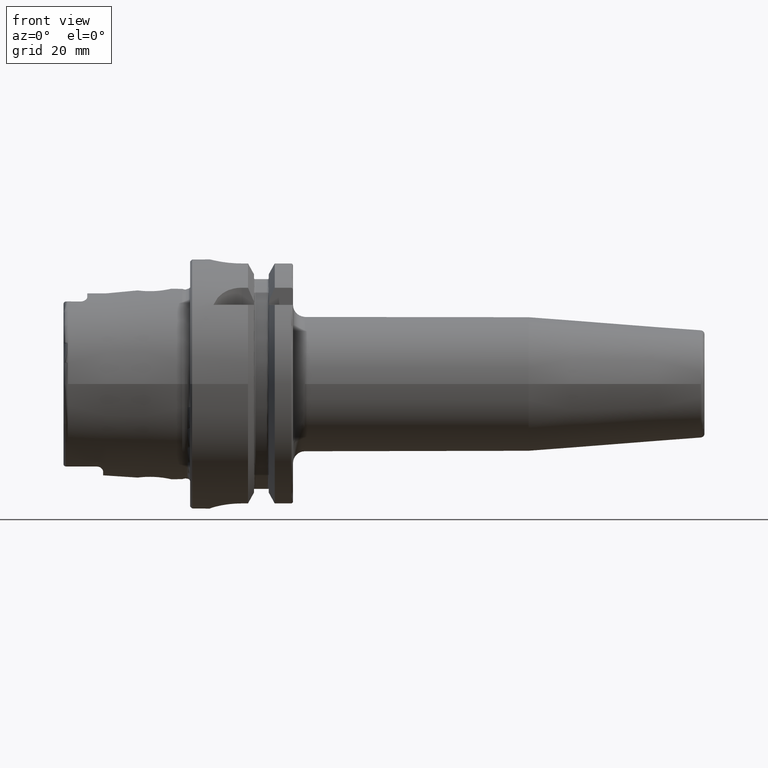
[diagram: clean part render]
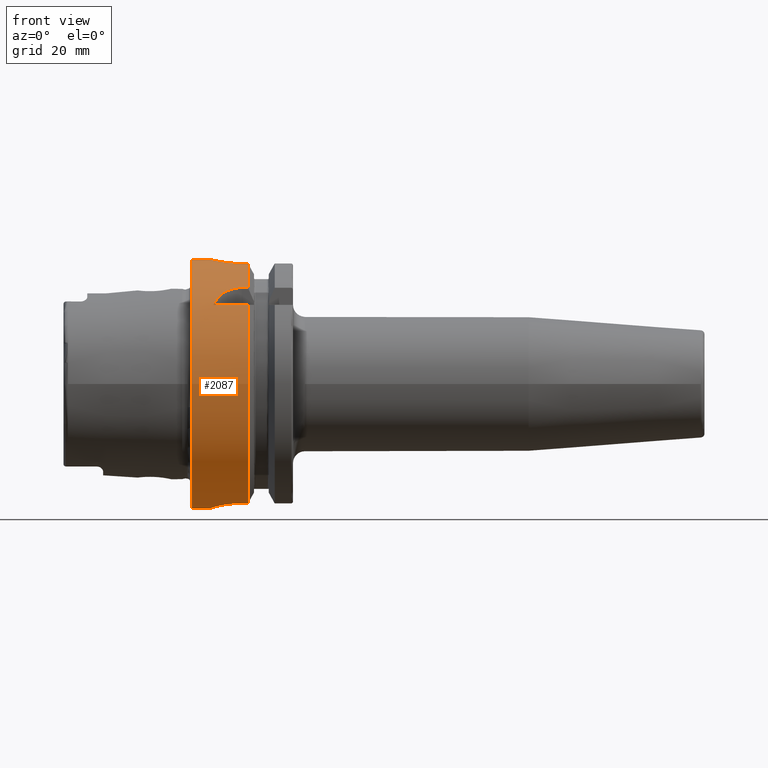
[diagram: same view with one face highlighted and labeled with its STEP entity id]
A machine part, front view. The second image highlights one B-rep face of the part: STEP entity #2087.
In plain terms, the highlighted cylindrical surface (bore or boss wall) has radius 31.5 mm, axis along (1, 0, 0).
Its self-contained STEP definition (entity closure, byte-faithful):
#57=B_SPLINE_CURVE_WITH_KNOTS('',3,(#3852,#3853,#3854,#3855,#3856,#3857,
#3858,#3859,#3860,#3861,#3862,#3863,#3864,#3865,#3866,#3867,#3868,#3869,
#3870,#3871,#3872,#3873,#3874,#3875,#3876,#3877),.UNSPECIFIED.,.F.,.F.,
(4,2,2,2,2,2,2,2,2,2,2,2,4),(0.,0.188688694287612,0.377377388575223,0.56606194688798,
0.754746505200737,0.943431063513494,1.13211562182625,1.32080431611386,1.50949301040147,
1.69818170468909,1.8868703989767,2.07555495728945,2.26423951560221),
 .UNSPECIFIED.);
#58=B_SPLINE_CURVE_WITH_KNOTS('',3,(#3878,#3879,#3880,#3881,#3882,#3883,
#3884,#3885,#3886,#3887),.UNSPECIFIED.,.F.,.F.,(4,2,2,2,4),(2.26423951560221,
2.45292407391497,2.64160863222773,2.83029732651534,3.01898602080295),
 .UNSPECIFIED.);
#61=B_SPLINE_CURVE_WITH_KNOTS('',3,(#3944,#3945,#3946,#3947,#3948,#3949,
#3950,#3951,#3952,#3953,#3954,#3955),.UNSPECIFIED.,.F.,.F.,(4,2,2,2,2,4),
(1.1085154204615,1.31979218709236,1.52798350480179,1.73617482251122,1.90421770126337,
2.07226058001552),.UNSPECIFIED.);
#71=B_SPLINE_CURVE_WITH_KNOTS('',3,(#4124,#4125,#4126,#4127,#4128,#4129,
#4130,#4131,#4132,#4133),.UNSPECIFIED.,.F.,.F.,(4,2,2,2,4),(1.20927420824097,
1.5131742975437,1.81707438684643,2.12000449915965,2.42293461147287),
 .UNSPECIFIED.);
#74=B_SPLINE_CURVE_WITH_KNOTS('',3,(#4159,#4160,#4161,#4162,#4163,#4164,
#4165,#4166,#4167,#4168),.UNSPECIFIED.,.F.,.F.,(4,2,2,2,4),(0.,0.30293011231322,
0.605860224626439,0.90976031392917,1.2136604032319),.UNSPECIFIED.);
#84=B_SPLINE_CURVE_WITH_KNOTS('',3,(#4314,#4315,#4316,#4317,#4318,#4319,
#4320,#4321,#4322,#4323,#4324,#4325,#4326,#4327,#4328,#4329,#4330,#4331),
 .UNSPECIFIED.,.F.,.F.,(4,2,2,2,2,2,2,2,4),(0.,0.302805879979318,0.605611759958635,
0.908372461246501,1.21113316253437,1.51389386382223,1.8166545651101,2.11946044508942,
2.42226632506874),.UNSPECIFIED.);
#97=FACE_BOUND('',#424,.T.);
#202=CYLINDRICAL_SURFACE('',#2321,31.5);
#294=FACE_OUTER_BOUND('',#423,.T.);
#423=EDGE_LOOP('',(#1786,#1787,#1788,#1789,#1790,#1791,#1792,#1793,#1794,
#1795,#1796,#1797,#1798,#1799,#1800,#1801,#1802,#1803));
#424=EDGE_LOOP('',(#1804,#1805));
#522=LINE('',#3919,#632);
#527=LINE('',#3964,#637);
#545=LINE('',#4141,#655);
#546=LINE('',#4145,#656);
#558=LINE('',#4308,#668);
#561=LINE('',#4338,#671);
#563=LINE('',#4344,#673);
#632=VECTOR('',#2674,10.);
#637=VECTOR('',#2685,10.);
#655=VECTOR('',#2749,10.);
#656=VECTOR('',#2752,10.);
#668=VECTOR('',#2830,10.);
#671=VECTOR('',#2841,10.);
#673=VECTOR('',#2849,31.5);
#747=CIRCLE('',#2264,31.5);
#748=CIRCLE('',#2265,31.5);
#756=CIRCLE('',#2285,31.5);
#757=CIRCLE('',#2287,31.5);
#771=CIRCLE('',#2322,31.5);
#772=CIRCLE('',#2323,31.5);
#923=VERTEX_POINT('',#3849);
#924=VERTEX_POINT('',#3851);
#932=VERTEX_POINT('',#3916);
#933=VERTEX_POINT('',#3918);
#937=VERTEX_POINT('',#3943);
#939=VERTEX_POINT('',#3960);
#944=VERTEX_POINT('',#3976);
#945=VERTEX_POINT('',#3978);
#970=VERTEX_POINT('',#4122);
#971=VERTEX_POINT('',#4123);
#972=VERTEX_POINT('',#4143);
#973=VERTEX_POINT('',#4144);
#976=VERTEX_POINT('',#4158);
#977=VERTEX_POINT('',#4173);
#993=VERTEX_POINT('',#4305);
#994=VERTEX_POINT('',#4307);
#995=VERTEX_POINT('',#4313);
#997=VERTEX_POINT('',#4343);
#1167=EDGE_CURVE('',#924,#923,#57,.T.);
#1168=EDGE_CURVE('',#923,#924,#58,.T.);
#1177=EDGE_CURVE('',#933,#932,#522,.T.);
#1183=EDGE_CURVE('',#932,#937,#61,.T.);
#1187=EDGE_CURVE('',#937,#939,#527,.T.);
#1193=EDGE_CURVE('',#933,#944,#747,.T.);
#1194=EDGE_CURVE('',#944,#945,#748,.T.);
#1228=EDGE_CURVE('',#970,#971,#71,.T.);
#1232=EDGE_CURVE('',#971,#945,#545,.T.);
#1233=EDGE_CURVE('',#972,#973,#546,.T.);
#1238=EDGE_CURVE('',#973,#976,#74,.T.);
#1240=EDGE_CURVE('',#976,#970,#756,.T.);
#1241=EDGE_CURVE('',#972,#977,#757,.T.);
#1273=EDGE_CURVE('',#994,#993,#558,.T.);
#1275=EDGE_CURVE('',#993,#995,#84,.T.);
#1279=EDGE_CURVE('',#995,#977,#561,.T.);
#1281=EDGE_CURVE('',#994,#939,#771,.T.);
#1282=EDGE_CURVE('',#944,#997,#563,.T.);
#1283=EDGE_CURVE('',#997,#997,#772,.T.);
#1786=ORIENTED_EDGE('',*,*,#1187,.T.);
#1787=ORIENTED_EDGE('',*,*,#1281,.F.);
#1788=ORIENTED_EDGE('',*,*,#1273,.T.);
#1789=ORIENTED_EDGE('',*,*,#1275,.T.);
#1790=ORIENTED_EDGE('',*,*,#1279,.T.);
#1791=ORIENTED_EDGE('',*,*,#1241,.F.);
#1792=ORIENTED_EDGE('',*,*,#1233,.T.);
#1793=ORIENTED_EDGE('',*,*,#1238,.T.);
#1794=ORIENTED_EDGE('',*,*,#1240,.T.);
#1795=ORIENTED_EDGE('',*,*,#1228,.T.);
#1796=ORIENTED_EDGE('',*,*,#1232,.T.);
#1797=ORIENTED_EDGE('',*,*,#1194,.F.);
#1798=ORIENTED_EDGE('',*,*,#1282,.T.);
#1799=ORIENTED_EDGE('',*,*,#1283,.T.);
#1800=ORIENTED_EDGE('',*,*,#1282,.F.);
#1801=ORIENTED_EDGE('',*,*,#1193,.F.);
#1802=ORIENTED_EDGE('',*,*,#1177,.T.);
#1803=ORIENTED_EDGE('',*,*,#1183,.T.);
#1804=ORIENTED_EDGE('',*,*,#1167,.T.);
#1805=ORIENTED_EDGE('',*,*,#1168,.T.);
#2087=ADVANCED_FACE('',(#294,#97),#202,.T.);
#2264=AXIS2_PLACEMENT_3D('',#3977,#2698,#2699);
#2265=AXIS2_PLACEMENT_3D('',#3979,#2700,#2701);
#2285=AXIS2_PLACEMENT_3D('',#4171,#2760,#2761);
#2287=AXIS2_PLACEMENT_3D('',#4174,#2764,#2765);
#2321=AXIS2_PLACEMENT_3D('',#4341,#2845,#2846);
#2322=AXIS2_PLACEMENT_3D('',#4342,#2847,#2848);
#2323=AXIS2_PLACEMENT_3D('',#4345,#2850,#2851);
#2674=DIRECTION('',(-1.,0.,0.));
#2685=DIRECTION('',(1.,0.,0.));
#2698=DIRECTION('center_axis',(1.,0.,0.));
#2699=DIRECTION('ref_axis',(0.,0.,-1.));
#2700=DIRECTION('center_axis',(1.,0.,0.));
#2701=DIRECTION('ref_axis',(0.,0.,-1.));
#2749=DIRECTION('',(1.,0.,0.));
#2752=DIRECTION('',(-1.,0.,0.));
#2760=DIRECTION('center_axis',(-1.,0.,0.));
#2761=DIRECTION('ref_axis',(0.,1.,0.));
#2764=DIRECTION('center_axis',(1.,0.,0.));
#2765=DIRECTION('ref_axis',(0.,0.,-1.));
#2830=DIRECTION('',(-1.,0.,0.));
#2841=DIRECTION('',(1.,0.,0.));
#2845=DIRECTION('center_axis',(1.,0.,0.));
#2846=DIRECTION('ref_axis',(0.,1.,0.));
#2847=DIRECTION('center_axis',(1.,0.,0.));
#2848=DIRECTION('ref_axis',(0.,0.,-1.));
#2849=DIRECTION('',(-1.,0.,0.));
#2850=DIRECTION('center_axis',(1.,0.,0.));
#2851=DIRECTION('ref_axis',(0.,0.,-1.));
#3849=CARTESIAN_POINT('',(12.,31.5,-6.12323399573677E-16));
#3851=CARTESIAN_POINT('',(7.,31.100643080168,5.));
#3852=CARTESIAN_POINT('Ctrl Pts',(7.,31.100643080168,5.));
#3853=CARTESIAN_POINT('Ctrl Pts',(6.37103768570796,31.100643080168,5.));
#3854=CARTESIAN_POINT('Ctrl Pts',(5.70089281579202,31.1216953112949,4.87408354368814));
#3855=CARTESIAN_POINT('Ctrl Pts',(4.46931934300962,31.1973810209855,4.36348784122736));
#3856=CARTESIAN_POINT('Ctrl Pts',(3.90779781350673,31.2508828501623,3.97886562537221));
#3857=CARTESIAN_POINT('Ctrl Pts',(3.021144092268,31.3510329557602,3.09221190413348));
#3858=CARTESIAN_POINT('Ctrl Pts',(2.63651425348544,31.4042391414288,2.5306861925578));
#3859=CARTESIAN_POINT('Ctrl Pts',(2.12591301120586,31.4792463697936,1.29909839144709));
#3860=CARTESIAN_POINT('Ctrl Pts',(2.,31.5,0.62894852770919));
#3861=CARTESIAN_POINT('Ctrl Pts',(2.,31.5,-0.62894852770919));
#3862=CARTESIAN_POINT('Ctrl Pts',(2.12591301120586,31.4792463697936,-1.29909839144709));
#3863=CARTESIAN_POINT('Ctrl Pts',(2.63651425348544,31.4042391414288,-2.5306861925578));
#3864=CARTESIAN_POINT('Ctrl Pts',(3.021144092268,31.3510329557602,-3.09221190413348));
#3865=CARTESIAN_POINT('Ctrl Pts',(3.90779781350673,31.2508828501623,-3.97886562537221));
#3866=CARTESIAN_POINT('Ctrl Pts',(4.46931934300962,31.1973810209855,-4.36348784122736));
#3867=CARTESIAN_POINT('Ctrl Pts',(5.70089281579202,31.1216953112949,-4.87408354368814));
#3868=CARTESIAN_POINT('Ctrl Pts',(6.37103768570796,31.100643080168,-5.));
#3869=CARTESIAN_POINT('Ctrl Pts',(7.62896231429204,31.100643080168,-5.));
#3870=CARTESIAN_POINT('Ctrl Pts',(8.29910718420798,31.1216953112949,-4.87408354368814));
#3871=CARTESIAN_POINT('Ctrl Pts',(9.53068065699038,31.1973810209855,-4.36348784122736));
#3872=CARTESIAN_POINT('Ctrl Pts',(10.0922021864933,31.2508828501623,-3.97886562537221));
#3873=CARTESIAN_POINT('Ctrl Pts',(10.978855907732,31.3510329557602,-3.09221190413348));
#3874=CARTESIAN_POINT('Ctrl Pts',(11.3634857465146,31.4042391414288,-2.53068619255779));
#3875=CARTESIAN_POINT('Ctrl Pts',(11.8740869887941,31.4792463697936,-1.29909839144708));
#3876=CARTESIAN_POINT('Ctrl Pts',(12.,31.5,-0.62894852770919));
#3877=CARTESIAN_POINT('Ctrl Pts',(12.,31.5,-4.16333634234434E-16));
#3878=CARTESIAN_POINT('Ctrl Pts',(12.,31.5,-1.11022302462516E-15));
#3879=CARTESIAN_POINT('Ctrl Pts',(12.,31.5,0.628948527709188));
#3880=CARTESIAN_POINT('Ctrl Pts',(11.8740869887941,31.4792463697936,1.29909839144708));
#3881=CARTESIAN_POINT('Ctrl Pts',(11.3634857465146,31.4042391414288,2.53068619255779));
#3882=CARTESIAN_POINT('Ctrl Pts',(10.978855907732,31.3510329557602,3.09221190413348));
#3883=CARTESIAN_POINT('Ctrl Pts',(10.0922021864933,31.2508828501623,3.97886562537221));
#3884=CARTESIAN_POINT('Ctrl Pts',(9.53068065699038,31.1973810209855,4.36348784122736));
#3885=CARTESIAN_POINT('Ctrl Pts',(8.29910718420798,31.1216953112949,4.87408354368814));
#3886=CARTESIAN_POINT('Ctrl Pts',(7.62896231429204,31.100643080168,5.));
#3887=CARTESIAN_POINT('Ctrl Pts',(7.,31.100643080168,5.));
#3916=CARTESIAN_POINT('',(5.88828609634419,-24.3361870472759,20.));
#3918=CARTESIAN_POINT('',(14.6225009252407,-24.3361870472759,20.));
#3919=CARTESIAN_POINT('',(7.56125046262034,-24.3361870472759,20.));
#3943=CARTESIAN_POINT('',(13.,-20.,24.3361870472759));
#3944=CARTESIAN_POINT('Ctrl Pts',(5.88828609634419,-24.3361870472759,20.));
#3945=CARTESIAN_POINT('Ctrl Pts',(6.11069532820048,-23.9044753723342,20.5253108035937));
#3946=CARTESIAN_POINT('Ctrl Pts',(6.38325999044306,-23.4713523250807,21.0173865932788));
#3947=CARTESIAN_POINT('Ctrl Pts',(7.044898076458,-22.6317364276543,21.9186738868096));
#3948=CARTESIAN_POINT('Ctrl Pts',(7.46714468561685,-22.1861072682036,22.3682920878559));
#3949=CARTESIAN_POINT('Ctrl Pts',(8.46725531403812,-21.3767026700071,23.143042657319));
#3950=CARTESIAN_POINT('Ctrl Pts',(9.04646427720221,-21.0147449478223,23.4683362269255));
#3951=CARTESIAN_POINT('Ctrl Pts',(10.1145001432702,-20.5200081116516,23.9011603796022));
#3952=CARTESIAN_POINT('Ctrl Pts',(10.670823971716,-20.3234249831704,24.0673462447194));
#3953=CARTESIAN_POINT('Ctrl Pts',(11.8334528721306,-20.063121855676,24.2847667849476));
#3954=CARTESIAN_POINT('Ctrl Pts',(12.4398570708262,-20.,24.3361870472759));
#3955=CARTESIAN_POINT('Ctrl Pts',(13.,-20.,24.3361870472759));
#3960=CARTESIAN_POINT('',(14.6225009252407,-20.,24.3361870472759));
#3964=CARTESIAN_POINT('',(7.56125046262035,-20.,24.3361870472759));
#3976=CARTESIAN_POINT('',(14.6225009252407,-31.5,-3.85763741731416E-15));
#3977=CARTESIAN_POINT('Origin',(14.6225009252407,0.,0.));
#3978=CARTESIAN_POINT('',(14.6225009252407,-9.,-30.1869176962472));
#3979=CARTESIAN_POINT('Origin',(14.6225009252407,0.,0.));
#4122=CARTESIAN_POINT('',(5.,-0.999999999999999,-31.4841229828623));
#4123=CARTESIAN_POINT('',(13.,-9.,-30.1869176962472));
#4124=CARTESIAN_POINT('Ctrl Pts',(5.,-0.999999999999997,-31.4841229828623));
#4125=CARTESIAN_POINT('Ctrl Pts',(5.,-2.01248971281587,-31.4519642432536));
#4126=CARTESIAN_POINT('Ctrl Pts',(5.2037733306458,-3.08756640398171,-31.3640631381934));
#4127=CARTESIAN_POINT('Ctrl Pts',(6.02370102555041,-5.05836608044729,-31.1070804719497));
#4128=CARTESIAN_POINT('Ctrl Pts',(6.63955745341061,-5.95454409907418,-30.9405445582004));
#4129=CARTESIAN_POINT('Ctrl Pts',(8.05472493283182,-7.36715009628369,-30.6348764237341));
#4130=CARTESIAN_POINT('Ctrl Pts',(8.9496642215883,-7.98063403850821,-30.4752177477269));
#4131=CARTESIAN_POINT('Ctrl Pts',(10.9171740660538,-8.79719825889174,-30.2496070227108));
#4132=CARTESIAN_POINT('Ctrl Pts',(11.9902329589559,-9.,-30.1869176962472));
#4133=CARTESIAN_POINT('Ctrl Pts',(13.,-9.,-30.1869176962472));
#4141=CARTESIAN_POINT('',(7.56125046262035,-8.99999999999999,-30.1869176962472));
#4143=CARTESIAN_POINT('',(14.6225009252407,9.,-30.1869176962472));
#4144=CARTESIAN_POINT('',(13.,9.00000000000001,-30.1869176962472));
#4145=CARTESIAN_POINT('',(7.56125046262034,9.00000000000001,-30.1869176962472));
#4158=CARTESIAN_POINT('',(5.,1.,-31.4841229828623));
#4159=CARTESIAN_POINT('Ctrl Pts',(13.,9.00000000000001,-30.1869176962472));
#4160=CARTESIAN_POINT('Ctrl Pts',(11.9902329589559,9.00000000000001,-30.1869176962472));
#4161=CARTESIAN_POINT('Ctrl Pts',(10.9171740660538,8.79719825889175,-30.2496070227108));
#4162=CARTESIAN_POINT('Ctrl Pts',(8.9496642215883,7.98063403850822,-30.4752177477269));
#4163=CARTESIAN_POINT('Ctrl Pts',(8.05472493283182,7.3671500962837,-30.6348764237341));
#4164=CARTESIAN_POINT('Ctrl Pts',(6.63955745341061,5.95454409907419,-30.9405445582004));
#4165=CARTESIAN_POINT('Ctrl Pts',(6.02370102555041,5.0583660804473,-31.1070804719497));
#4166=CARTESIAN_POINT('Ctrl Pts',(5.2037733306458,3.08756640398172,-31.3640631381934));
#4167=CARTESIAN_POINT('Ctrl Pts',(5.,2.01248971281588,-31.4519642432536));
#4168=CARTESIAN_POINT('Ctrl Pts',(5.,1.00000000000001,-31.4841229828623));
#4171=CARTESIAN_POINT('Origin',(5.,0.,0.));
#4173=CARTESIAN_POINT('',(14.6225009252407,8.,30.4671954731642));
#4174=CARTESIAN_POINT('Origin',(14.6225009252407,0.,0.));
#4305=CARTESIAN_POINT('',(13.,-8.,30.4671954731642));
#4307=CARTESIAN_POINT('',(14.6225009252407,-8.,30.4671954731642));
#4308=CARTESIAN_POINT('',(7.56125046262034,-8.,30.4671954731642));
#4313=CARTESIAN_POINT('',(13.,8.,30.4671954731642));
#4314=CARTESIAN_POINT('Ctrl Pts',(13.,-8.,30.4671954731643));
#4315=CARTESIAN_POINT('Ctrl Pts',(11.9906470667356,-8.,30.4671954731643));
#4316=CARTESIAN_POINT('Ctrl Pts',(10.9172075930168,-7.79737202490167,30.5225803085525));
#4317=CARTESIAN_POINT('Ctrl Pts',(8.94758399331801,-6.97961067526075,30.719895002943));
#4318=CARTESIAN_POINT('Ctrl Pts',(8.05099322370438,-6.36470172268915,30.8586830127239));
#4319=CARTESIAN_POINT('Ctrl Pts',(6.63540388828045,-4.94911238726521,31.1170994373341));
#4320=CARTESIAN_POINT('Ctrl Pts',(6.02041263015313,-4.05247770930662,31.2539072689014));
#4321=CARTESIAN_POINT('Ctrl Pts',(5.20259114887399,-2.08269813865027,31.4466478906396));
#4322=CARTESIAN_POINT('Ctrl Pts',(5.,-1.00920233762622,31.5));
#4323=CARTESIAN_POINT('Ctrl Pts',(5.,1.00920233762622,31.5));
#4324=CARTESIAN_POINT('Ctrl Pts',(5.20259114887399,2.08269813865027,31.4466478906396));
#4325=CARTESIAN_POINT('Ctrl Pts',(6.02041263015313,4.05247770930662,31.2539072689014));
#4326=CARTESIAN_POINT('Ctrl Pts',(6.63540388828045,4.94911238726521,31.1170994373341));
#4327=CARTESIAN_POINT('Ctrl Pts',(8.05099322370439,6.36470172268915,30.8586830127239));
#4328=CARTESIAN_POINT('Ctrl Pts',(8.94758399331801,6.97961067526075,30.719895002943));
#4329=CARTESIAN_POINT('Ctrl Pts',(10.9172075930168,7.79737202490167,30.5225803085525));
#4330=CARTESIAN_POINT('Ctrl Pts',(11.9906470667356,8.,30.4671954731643));
#4331=CARTESIAN_POINT('Ctrl Pts',(13.,8.,30.4671954731643));
#4338=CARTESIAN_POINT('',(7.56125046262035,8.,30.4671954731642));
#4341=CARTESIAN_POINT('Origin',(7.56125046262034,0.,0.));
#4342=CARTESIAN_POINT('Origin',(14.6225009252407,0.,0.));
#4343=CARTESIAN_POINT('',(0.5,-31.5,-3.85763741731416E-15));
#4344=CARTESIAN_POINT('',(7.56125046262034,-31.5,-3.85763741731416E-15));
#4345=CARTESIAN_POINT('Origin',(0.5,0.,0.));